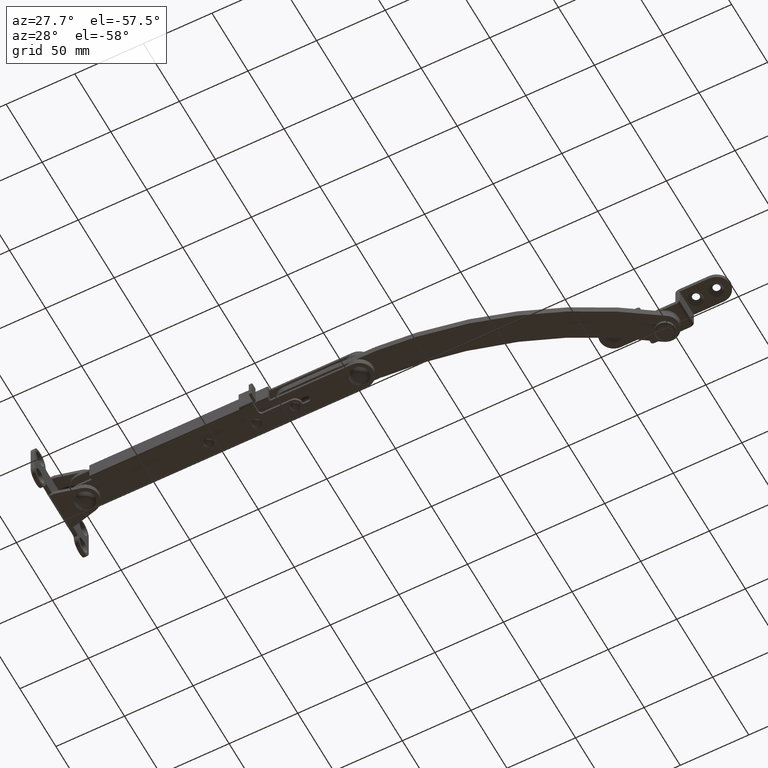
[diagram: clean part render]
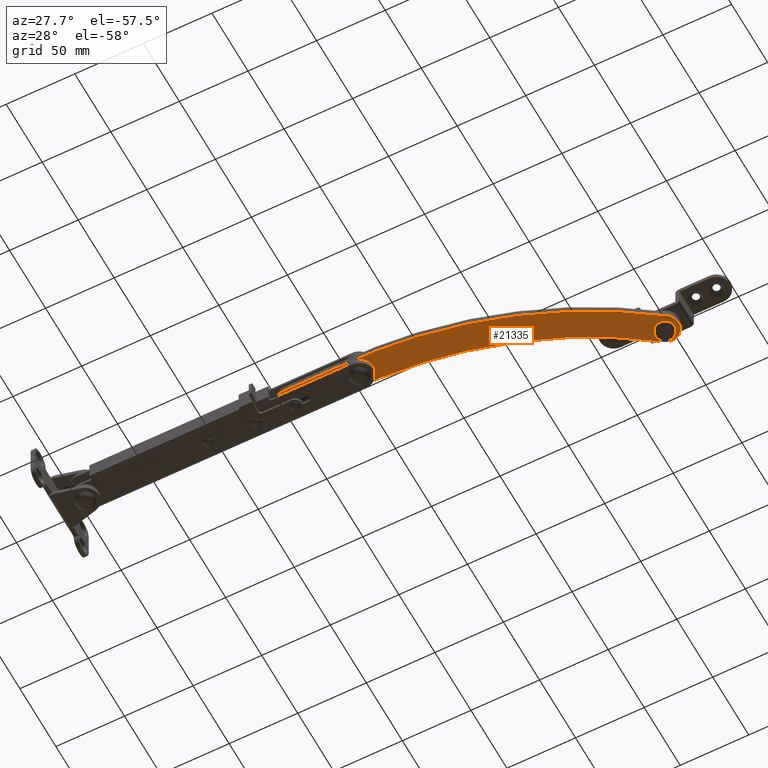
[diagram: same view with one face highlighted and labeled with its STEP entity id]
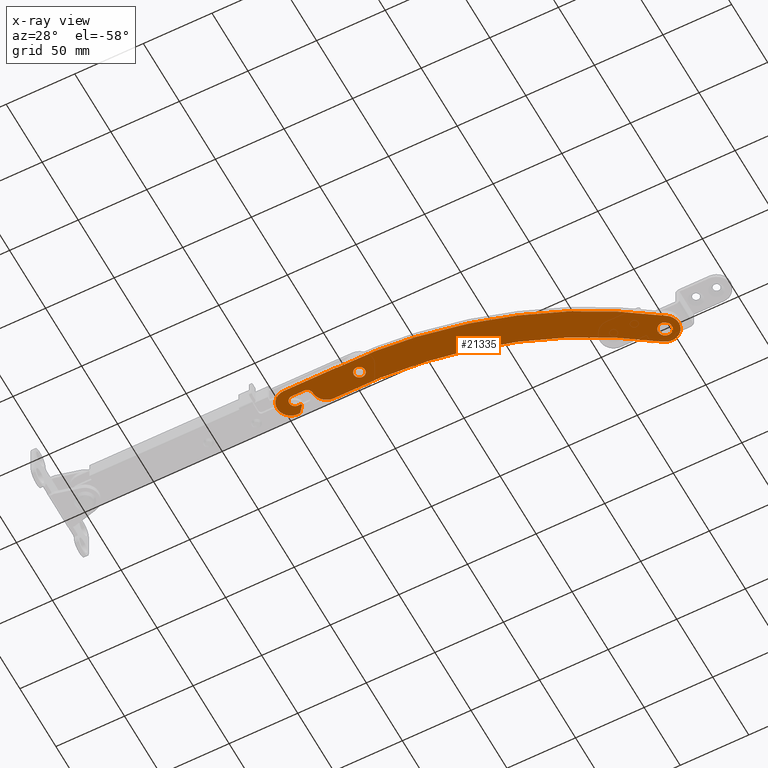
[diagram: x-ray of the same camera — body ghosted, the highlighted face saturated]
A machine part, auxiliary view. The second image highlights one B-rep face of the part: STEP entity #21335.
The next image is the same camera in x-ray: the body ghosted, the highlighted face saturated — about 0% of this face is hidden behind the body in this view.
In plain terms, the highlighted face is a freeform B-spline surface patch.
Its self-contained STEP definition (entity closure, byte-faithful):
#20151=CARTESIAN_POINT('',(199.682209662074710,4.037515201601258,-2.499999999999945));
#20152=VERTEX_POINT('',#20151);
#20158=CARTESIAN_POINT('',(204.049969000000000,0.0,-2.499999999999945));
#20159=VERTEX_POINT('',#20158);
#20160=CARTESIAN_POINT('',(199.682209662074650,4.037515201601258,-2.499999999999946));
#20161=CARTESIAN_POINT('',(199.840844066390360,4.050000000000000,-2.499999999999945));
#20162=CARTESIAN_POINT('',(199.999968999999990,4.050000000000000,-2.499999999999945));
#20163=CARTESIAN_POINT('',(204.049968999999980,4.050000000000001,-2.499999999999945));
#20164=CARTESIAN_POINT('',(204.049969000000000,0.0,-2.499999999999945));
#20172=(BOUNDED_CURVE()B_SPLINE_CURVE(2,(#20160,#20161,#20162,#20163,#20164),.UNSPECIFIED.,.F.,.U.)B_SPLINE_CURVE_WITH_KNOTS((3,2,3),(0.736331300613444,0.750000000000000,1.0),.UNSPECIFIED.)CURVE()GEOMETRIC_REPRESENTATION_ITEM()RATIONAL_B_SPLINE_CURVE((0.969723356131490,0.983986122558712,1.0,0.707106781186548,1.0))REPRESENTATION_ITEM(''));
#20173=EDGE_CURVE('',#20152,#20159,#20172,.T.);
#20175=CARTESIAN_POINT('',(200.317728337925300,-4.037515201601259,-2.499999999999944));
#20176=VERTEX_POINT('',#20175);
#20177=CARTESIAN_POINT('',(204.049969000000000,0.0,-2.499999999999945));
#20178=CARTESIAN_POINT('',(204.049968999999920,-3.743781490792441,-2.499999999999945));
#20179=CARTESIAN_POINT('',(200.317728337925270,-4.037515201601259,-2.499999999999944));
#20187=(BOUNDED_CURVE()B_SPLINE_CURVE(2,(#20177,#20178,#20179),.UNSPECIFIED.,.F.,.U.)B_SPLINE_CURVE_WITH_KNOTS((3,3),(0.0,0.236331300613444),.UNSPECIFIED.)CURVE()GEOMETRIC_REPRESENTATION_ITEM()RATIONAL_B_SPLINE_CURVE((1.0,0.723120658627835,0.969723356131491))REPRESENTATION_ITEM(''));
#20188=EDGE_CURVE('',#20159,#20176,#20187,.T.);
#20234=CARTESIAN_POINT('',(195.949969000000010,0.0,-2.499999999999945));
#20235=VERTEX_POINT('',#20234);
#20236=CARTESIAN_POINT('',(200.317728337925300,-4.037515201601259,-2.499999999999944));
#20237=CARTESIAN_POINT('',(200.159093933609630,-4.050000000000001,-2.499999999999945));
#20238=CARTESIAN_POINT('',(199.999968999999990,-4.050000000000000,-2.499999999999945));
#20239=CARTESIAN_POINT('',(195.949969000000010,-4.050000000000001,-2.499999999999945));
#20240=CARTESIAN_POINT('',(195.949969000000010,0.0,-2.499999999999945));
#20248=(BOUNDED_CURVE()B_SPLINE_CURVE(2,(#20236,#20237,#20238,#20239,#20240),.UNSPECIFIED.,.F.,.U.)B_SPLINE_CURVE_WITH_KNOTS((3,2,3),(0.236331300613444,0.250000000000000,0.500000000000000),.UNSPECIFIED.)CURVE()GEOMETRIC_REPRESENTATION_ITEM()RATIONAL_B_SPLINE_CURVE((0.969723356131490,0.983986122558713,1.0,0.707106781186548,1.0))REPRESENTATION_ITEM(''));
#20249=EDGE_CURVE('',#20176,#20235,#20248,.T.);
#20251=CARTESIAN_POINT('',(195.949969000000010,0.0,-2.499999999999945));
#20252=CARTESIAN_POINT('',(195.949969000000010,3.743781490792431,-2.499999999999946));
#20253=CARTESIAN_POINT('',(199.682209662074650,4.037515201601258,-2.499999999999946));
#20261=(BOUNDED_CURVE()B_SPLINE_CURVE(2,(#20251,#20252,#20253),.UNSPECIFIED.,.F.,.U.)B_SPLINE_CURVE_WITH_KNOTS((3,3),(0.500000000000000,0.736331300613444),.UNSPECIFIED.)CURVE()GEOMETRIC_REPRESENTATION_ITEM()RATIONAL_B_SPLINE_CURVE((1.0,0.723120658627835,0.969723356131490))REPRESENTATION_ITEM(''));
#20262=EDGE_CURVE('',#20235,#20152,#20261,.T.);
#20333=CARTESIAN_POINT('',(389.647376518544380,67.313764668444094,-2.499999999999945));
#20334=VERTEX_POINT('',#20333);
#20340=CARTESIAN_POINT('',(395.039672000000000,62.329178000000098,-2.499999999999945));
#20341=VERTEX_POINT('',#20340);
#20342=CARTESIAN_POINT('',(389.647376518544430,67.313764668444094,-2.499999999999945));
#20343=CARTESIAN_POINT('',(389.843221462132140,67.329178000000098,-2.499999999999946));
#20344=CARTESIAN_POINT('',(390.039672000000000,67.329178000000098,-2.499999999999945));
#20345=CARTESIAN_POINT('',(395.039672000000000,67.329178000000098,-2.499999999999945));
#20346=CARTESIAN_POINT('',(395.039672000000000,62.329178000000098,-2.499999999999945));
#20354=(BOUNDED_CURVE()B_SPLINE_CURVE(2,(#20342,#20343,#20344,#20345,#20346),.UNSPECIFIED.,.F.,.U.)B_SPLINE_CURVE_WITH_KNOTS((3,2,3),(0.736331300439053,0.750000000000000,1.0),.UNSPECIFIED.)CURVE()GEOMETRIC_REPRESENTATION_ITEM()RATIONAL_B_SPLINE_CURVE((0.969723355767549,0.983986122354401,1.0,0.707106781186548,1.0))REPRESENTATION_ITEM(''));
#20355=EDGE_CURVE('',#20334,#20341,#20354,.T.);
#20357=CARTESIAN_POINT('',(390.431967481455620,57.344591331556117,-2.499999999999945));
#20358=VERTEX_POINT('',#20357);
#20359=CARTESIAN_POINT('',(395.039672000000000,62.329178000000098,-2.499999999999945));
#20360=CARTESIAN_POINT('',(395.039672000000000,57.707225546948102,-2.499999999999945));
#20361=CARTESIAN_POINT('',(390.431967481455620,57.344591331556117,-2.499999999999945));
#20369=(BOUNDED_CURVE()B_SPLINE_CURVE(2,(#20359,#20360,#20361),.UNSPECIFIED.,.F.,.U.)B_SPLINE_CURVE_WITH_KNOTS((3,3),(0.0,0.236331300439054),.UNSPECIFIED.)CURVE()GEOMETRIC_REPRESENTATION_ITEM()RATIONAL_B_SPLINE_CURVE((1.0,0.723120658832146,0.969723355767551))REPRESENTATION_ITEM(''));
#20370=EDGE_CURVE('',#20341,#20358,#20369,.T.);
#20416=CARTESIAN_POINT('',(385.039672000000000,62.329178000000098,-2.499999999999945));
#20417=VERTEX_POINT('',#20416);
#20418=CARTESIAN_POINT('',(390.431967481455620,57.344591331556117,-2.499999999999945));
#20419=CARTESIAN_POINT('',(390.236122537867740,57.329178000000091,-2.499999999999945));
#20420=CARTESIAN_POINT('',(390.039672000000000,57.329178000000098,-2.499999999999945));
#20421=CARTESIAN_POINT('',(385.039672000000050,57.329178000000084,-2.499999999999945));
#20422=CARTESIAN_POINT('',(385.039672000000000,62.329178000000098,-2.499999999999945));
#20430=(BOUNDED_CURVE()B_SPLINE_CURVE(2,(#20418,#20419,#20420,#20421,#20422),.UNSPECIFIED.,.F.,.U.)B_SPLINE_CURVE_WITH_KNOTS((3,2,3),(0.236331300439054,0.250000000000000,0.500000000000000),.UNSPECIFIED.)CURVE()GEOMETRIC_REPRESENTATION_ITEM()RATIONAL_B_SPLINE_CURVE((0.969723355767551,0.983986122354402,1.0,0.707106781186548,1.0))REPRESENTATION_ITEM(''));
#20431=EDGE_CURVE('',#20358,#20417,#20430,.T.);
#20433=CARTESIAN_POINT('',(385.039672000000000,62.329178000000098,-2.499999999999945));
#20434=CARTESIAN_POINT('',(385.039672000000110,66.951130453052031,-2.499999999999946));
#20435=CARTESIAN_POINT('',(389.647376518544430,67.313764668444094,-2.499999999999945));
#20443=(BOUNDED_CURVE()B_SPLINE_CURVE(2,(#20433,#20434,#20435),.UNSPECIFIED.,.F.,.U.)B_SPLINE_CURVE_WITH_KNOTS((3,3),(0.500000000000000,0.736331300439052),.UNSPECIFIED.)CURVE()GEOMETRIC_REPRESENTATION_ITEM()RATIONAL_B_SPLINE_CURVE((1.0,0.723120658832148,0.969723355767548))REPRESENTATION_ITEM(''));
#20444=EDGE_CURVE('',#20417,#20334,#20443,.T.);
#20494=CARTESIAN_POINT('',(165.992293828772010,0.003207617239024,-2.499999999999945));
#20495=VERTEX_POINT('',#20494);
#20501=CARTESIAN_POINT('',(161.891604911397000,-4.096090723936130,-2.499999999999945));
#20502=VERTEX_POINT('',#20501);
#20503=CARTESIAN_POINT('',(165.992293828772290,0.003207617239025,-2.499999999999945));
#20504=CARTESIAN_POINT('',(165.991592229996630,-4.096779699219845,-2.499999999999944));
#20505=CARTESIAN_POINT('',(161.891604911397000,-4.096090723936151,-2.499999999999945));
#20513=(BOUNDED_CURVE()B_SPLINE_CURVE(2,(#20503,#20504,#20505),.UNSPECIFIED.,.F.,.U.)CURVE()GEOMETRIC_REPRESENTATION_ITEM()QUASI_UNIFORM_CURVE()RATIONAL_B_SPLINE_CURVE((1.0,0.707107869744780,1.0))REPRESENTATION_ITEM(''));
#20514=EDGE_CURVE('',#20495,#20502,#20513,.T.);
#20537=CARTESIAN_POINT('',(152.991604576599000,-4.094595138761060,-2.499999999999945));
#20538=VERTEX_POINT('',#20537);
#20539=CARTESIAN_POINT('',(152.991604576599000,-4.094595138761060,-2.499999999999945));
#20540=CARTESIAN_POINT('',(161.891604911397000,-4.096090723936130,-2.499999999999945));
#20541=QUASI_UNIFORM_CURVE('',1,(#20539,#20540),.UNSPECIFIED.,.F.,.U.);
#20542=EDGE_CURVE('',#20538,#20502,#20541,.T.);
#20590=CARTESIAN_POINT('',(152.992980060619490,4.105426376480540,-2.499999999999945));
#20591=VERTEX_POINT('',#20590);
#20592=CARTESIAN_POINT('',(152.991604576599000,-4.094595138761059,-2.499999999999945));
#20593=CARTESIAN_POINT('',(150.624451975830340,-4.094211428268318,-2.499999999999945));
#20594=CARTESIAN_POINT('',(149.441215692187000,-2.044000834297593,-2.499999999999945));
#20595=CARTESIAN_POINT('',(148.257979408543690,0.006209759673132,-2.499999999999945));
#20596=CARTESIAN_POINT('',(149.441903436438110,2.056023282590268,-2.499999999999945));
#20597=CARTESIAN_POINT('',(150.625827464332620,4.105836805507403,-2.499999999999945));
#20598=CARTESIAN_POINT('',(152.992980060619490,4.105426376480549,-2.499999999999945));
#20606=(BOUNDED_CURVE()B_SPLINE_CURVE(2,(#20592,#20593,#20594,#20595,#20596,#20597,#20598),.UNSPECIFIED.,.F.,.U.)B_SPLINE_CURVE_WITH_KNOTS((3,2,2,3),(0.0,0.333333333333333,0.666666666666667,1.0),.UNSPECIFIED.)CURVE()GEOMETRIC_REPRESENTATION_ITEM()RATIONAL_B_SPLINE_CURVE((1.0,0.866024463182579,1.0,0.866024463182579,1.0,0.866024463182579,1.0))REPRESENTATION_ITEM(''));
#20607=EDGE_CURVE('',#20538,#20591,#20606,.T.);
#20630=CARTESIAN_POINT('',(155.494548496868990,4.104992641747895,-2.499999999999945));
#20631=VERTEX_POINT('',#20630);
#20632=CARTESIAN_POINT('',(155.494548496868990,4.104992641747895,-2.499999999999945));
#20633=CARTESIAN_POINT('',(152.992980060619490,4.105426376480540,-2.499999999999945));
#20634=QUASI_UNIFORM_CURVE('',1,(#20632,#20633),.UNSPECIFIED.,.F.,.U.);
#20635=EDGE_CURVE('',#20631,#20591,#20634,.T.);
#20658=CARTESIAN_POINT('',(155.495111645176000,5.104995582170590,-2.499999999999945));
#20659=VERTEX_POINT('',#20658);
#20660=CARTESIAN_POINT('',(155.495111645176000,5.104995582170590,-2.499999999999945));
#20661=CARTESIAN_POINT('',(155.494548496868990,4.104992641747895,-2.499999999999945));
#20662=QUASI_UNIFORM_CURVE('',1,(#20660,#20661),.UNSPECIFIED.,.F.,.U.);
#20663=EDGE_CURVE('',#20659,#20631,#20662,.T.);
#20686=CARTESIAN_POINT('',(151.604273395805510,9.875120801763650,-2.499999999999945));
#20687=VERTEX_POINT('',#20686);
#20688=CARTESIAN_POINT('',(151.604273395805510,9.875120801763650,-2.499999999999945));
#20689=CARTESIAN_POINT('',(155.495111645176000,5.104995582170590,-2.499999999999945));
#20690=QUASI_UNIFORM_CURVE('',1,(#20688,#20689),.UNSPECIFIED.,.F.,.U.);
#20691=EDGE_CURVE('',#20687,#20659,#20690,.T.);
#20739=CARTESIAN_POINT('',(149.967174670438000,-9.994073230658492,-2.499999999999945));
#20740=VERTEX_POINT('',#20739);
#20741=CARTESIAN_POINT('',(149.967174670438000,-9.994073230658492,-2.499999999999945));
#20742=CARTESIAN_POINT('',(143.833896049889350,-9.978649185365187,-2.499999999999946));
#20743=CARTESIAN_POINT('',(141.067397372090600,-4.504726496452794,-2.499999999999945));
#20744=CARTESIAN_POINT('',(138.300898694291790,0.969196192459599,-2.499999999999946));
#20745=CARTESIAN_POINT('',(141.926040939578090,5.916487192582053,-2.499999999999945));
#20746=CARTESIAN_POINT('',(145.551183184864410,10.863778192704507,-2.499999999999946));
#20747=CARTESIAN_POINT('',(151.604273395805510,9.875120801763622,-2.499999999999945));
#20755=(BOUNDED_CURVE()B_SPLINE_CURVE(2,(#20741,#20742,#20743,#20744,#20745,#20746,#20747),.UNSPECIFIED.,.F.,.U.)B_SPLINE_CURVE_WITH_KNOTS((3,2,2,3),(0.0,0.333333333333333,0.666666666666667,1.0),.UNSPECIFIED.)CURVE()GEOMETRIC_REPRESENTATION_ITEM()RATIONAL_B_SPLINE_CURVE((1.0,0.852439200869313,1.0,0.852439200869313,1.0,0.852439200869313,1.0))REPRESENTATION_ITEM(''));
#20756=EDGE_CURVE('',#20740,#20687,#20755,.T.);
#20779=CARTESIAN_POINT('',(188.631841210929510,-10.000602722502681,-2.499999999999945));
#20780=VERTEX_POINT('',#20779);
#20781=CARTESIAN_POINT('',(188.631841210929510,-10.000602722502681,-2.499999999999945));
#20782=CARTESIAN_POINT('',(149.967174670438000,-9.994073230658492,-2.499999999999945));
#20783=QUASI_UNIFORM_CURVE('',1,(#20781,#20782),.UNSPECIFIED.,.F.,.U.);
#20784=EDGE_CURVE('',#20780,#20740,#20783,.T.);
#20830=CARTESIAN_POINT('',(188.635328099598010,-9.800662946603380,-2.499999999999945));
#20831=VERTEX_POINT('',#20830);
#20832=CARTESIAN_POINT('',(188.635328099598010,-9.800662946603383,-2.499999999999945));
#20833=CARTESIAN_POINT('',(188.733556743992860,-9.804073535669447,-2.499999999999945));
#20834=CARTESIAN_POINT('',(188.731842894739800,-9.902346428260298,-2.499999999999945));
#20835=CARTESIAN_POINT('',(188.730129045486620,-10.000619320851149,-2.499999999999945));
#20836=CARTESIAN_POINT('',(188.631841210929510,-10.000602722502689,-2.499999999999945));
#20844=(BOUNDED_CURVE()B_SPLINE_CURVE(2,(#20832,#20833,#20834,#20835,#20836),.UNSPECIFIED.,.F.,.U.)B_SPLINE_CURVE_WITH_KNOTS((3,2,3),(0.0,0.500000000000000,1.0),.UNSPECIFIED.)CURVE()GEOMETRIC_REPRESENTATION_ITEM()RATIONAL_B_SPLINE_CURVE((1.0,0.713185878240497,1.0,0.713185878240497,1.0))REPRESENTATION_ITEM(''));
#20845=EDGE_CURVE('',#20831,#20780,#20844,.T.);
#20885=CARTESIAN_POINT('',(395.932670892218030,54.131489166774003,-2.499999999999945));
#20886=VERTEX_POINT('',#20885);
#20887=CARTESIAN_POINT('',(395.932670892218080,54.131489166774067,-2.499999999999945));
#20888=CARTESIAN_POINT('',(303.371207799041030,-13.784398436252850,-2.499999999999945));
#20889=CARTESIAN_POINT('',(188.635328099598010,-9.800662946603367,-2.499999999999945));
#20897=(BOUNDED_CURVE()B_SPLINE_CURVE(2,(#20887,#20888,#20889),.UNSPECIFIED.,.F.,.U.)CURVE()GEOMETRIC_REPRESENTATION_ITEM()QUASI_UNIFORM_CURVE()RATIONAL_B_SPLINE_CURVE((1.0,0.944784642176282,1.0))REPRESENTATION_ITEM(''));
#20898=EDGE_CURVE('',#20886,#20831,#20897,.T.);
#20938=CARTESIAN_POINT('',(395.946060059229010,54.143288464509403,-2.499999999999945));
#20939=VERTEX_POINT('',#20938);
#20940=CARTESIAN_POINT('',(395.946060059229180,54.143288464509183,-2.499999999999945));
#20941=CARTESIAN_POINT('',(395.939894020984180,54.136789052763667,-2.499999999999945));
#20942=CARTESIAN_POINT('',(395.932670892218030,54.131489166774010,-2.499999999999945));
#20950=(BOUNDED_CURVE()B_SPLINE_CURVE(2,(#20940,#20941,#20942),.UNSPECIFIED.,.F.,.U.)CURVE()GEOMETRIC_REPRESENTATION_ITEM()QUASI_UNIFORM_CURVE()RATIONAL_B_SPLINE_CURVE((1.0,0.996010878199911,1.0))REPRESENTATION_ITEM(''));
#20951=EDGE_CURVE('',#20939,#20886,#20950,.T.);
#20991=CARTESIAN_POINT('',(395.959951515913020,54.155453915347202,-2.499999999999945));
#20992=VERTEX_POINT('',#20991);
#20993=CARTESIAN_POINT('',(395.946060059229010,54.143288464509432,-2.499999999999945));
#20994=CARTESIAN_POINT('',(395.952441778948750,54.150015218781007,-2.499999999999945));
#20995=CARTESIAN_POINT('',(395.959951515912910,54.155453915347280,-2.499999999999945));
#21003=(BOUNDED_CURVE()B_SPLINE_CURVE(2,(#20993,#20994,#20995),.UNSPECIFIED.,.F.,.U.)CURVE()GEOMETRIC_REPRESENTATION_ITEM()QUASI_UNIFORM_CURVE()RATIONAL_B_SPLINE_CURVE((1.0,0.995728743648471,1.0))REPRESENTATION_ITEM(''));
#21004=EDGE_CURVE('',#20939,#20992,#21003,.T.);
#21050=CARTESIAN_POINT('',(384.371410625373020,70.454998101325700,-2.499999999999945));
#21051=VERTEX_POINT('',#21050);
#21052=CARTESIAN_POINT('',(384.371410625373410,70.454998101325245,-2.499999999999945));
#21053=CARTESIAN_POINT('',(392.500457132577200,76.128186322258287,-2.499999999999945));
#21054=CARTESIAN_POINT('',(398.244504629345900,68.049053939305011,-2.499999999999945));
#21055=CARTESIAN_POINT('',(403.988552126114430,59.969921556351750,-2.499999999999945));
#21056=CARTESIAN_POINT('',(395.959951515913020,54.155453915347103,-2.499999999999945));
#21064=(BOUNDED_CURVE()B_SPLINE_CURVE(2,(#21052,#21053,#21054,#21055,#21056),.UNSPECIFIED.,.F.,.U.)B_SPLINE_CURVE_WITH_KNOTS((3,2,3),(0.0,0.500000000000000,1.0),.UNSPECIFIED.)CURVE()GEOMETRIC_REPRESENTATION_ITEM()RATIONAL_B_SPLINE_CURVE((1.0,0.710191339439909,1.0,0.710191339439909,1.0))REPRESENTATION_ITEM(''));
#21065=EDGE_CURVE('',#21051,#20992,#21064,.T.);
#21105=CARTESIAN_POINT('',(211.270921621366990,10.199935711989699,-2.499999999999945));
#21106=VERTEX_POINT('',#21105);
#21107=CARTESIAN_POINT('',(384.371410625373070,70.454998101325771,-2.499999999999945));
#21108=CARTESIAN_POINT('',(307.111512999859880,13.638197597696639,-2.499999999999945));
#21109=CARTESIAN_POINT('',(211.270921621366990,10.199935711989680,-2.499999999999945));
#21117=(BOUNDED_CURVE()B_SPLINE_CURVE(2,(#21107,#21108,#21109),.UNSPECIFIED.,.F.,.U.)CURVE()GEOMETRIC_REPRESENTATION_ITEM()QUASI_UNIFORM_CURVE()RATIONAL_B_SPLINE_CURVE((1.0,0.955597511157702,1.0))REPRESENTATION_ITEM(''));
#21118=EDGE_CURVE('',#21051,#21106,#21117,.T.);
#21164=CARTESIAN_POINT('',(211.274506794878990,10.0,-2.499999999999945));
#21165=VERTEX_POINT('',#21164);
#21166=CARTESIAN_POINT('',(211.274506794878990,10.000000000000011,-2.499999999999945));
#21167=CARTESIAN_POINT('',(211.176283882151210,10.000000000000005,-2.499999999999945));
#21168=CARTESIAN_POINT('',(211.174522868173310,10.098207125069930,-2.499999999999945));
#21169=CARTESIAN_POINT('',(211.172761854195410,10.196414250139854,-2.499999999999945));
#21170=CARTESIAN_POINT('',(211.270921621366990,10.199935711989699,-2.499999999999945));
#21178=(BOUNDED_CURVE()B_SPLINE_CURVE(2,(#21166,#21167,#21168,#21169,#21170),.UNSPECIFIED.,.F.,.U.)B_SPLINE_CURVE_WITH_KNOTS((3,2,3),(0.0,0.500000000000000,1.0),.UNSPECIFIED.)CURVE()GEOMETRIC_REPRESENTATION_ITEM()RATIONAL_B_SPLINE_CURVE((1.0,0.713417391609112,1.0,0.713417391609112,1.0))REPRESENTATION_ITEM(''));
#21179=EDGE_CURVE('',#21165,#21106,#21178,.T.);
#21202=CARTESIAN_POINT('',(175.819303307804490,10.0,-2.499999999999945));
#21203=VERTEX_POINT('',#21202);
#21204=CARTESIAN_POINT('',(175.819303307804490,10.0,-2.499999999999945));
#21205=CARTESIAN_POINT('',(211.274506794878990,10.0,-2.499999999999945));
#21206=QUASI_UNIFORM_CURVE('',1,(#21204,#21205),.UNSPECIFIED.,.F.,.U.);
#21207=EDGE_CURVE('',#21203,#21165,#21206,.T.);
#21245=CARTESIAN_POINT('',(165.992293828772010,0.003207617239020,-2.499999999999945));
#21246=CARTESIAN_POINT('',(165.993975411926870,9.830005846870508,-2.499999999999945));
#21247=CARTESIAN_POINT('',(175.819303307804490,10.0,-2.499999999999945));
#21255=(BOUNDED_CURVE()B_SPLINE_CURVE(2,(#21245,#21246,#21247),.UNSPECIFIED.,.F.,.U.)CURVE()GEOMETRIC_REPRESENTATION_ITEM()QUASI_UNIFORM_CURVE()RATIONAL_B_SPLINE_CURVE((1.0,0.713256662701052,1.0))REPRESENTATION_ITEM(''));
#21256=EDGE_CURVE('',#20495,#21203,#21255,.T.);
#21299=CARTESIAN_POINT('',(127.004306313644800,-14.109187674378020,-2.500000000000000));
#21300=CARTESIAN_POINT('',(413.086074087555800,-14.109187674378020,-2.500000000000000));
#21301=CARTESIAN_POINT('',(127.004306313644800,76.361940617767672,-2.500000000000000));
#21302=CARTESIAN_POINT('',(413.086074087555800,76.361940617767672,-2.500000000000000));
#21303=B_SPLINE_SURFACE_WITH_KNOTS('',1,1,((#21299,#21301),(#21300,#21302)),.UNSPECIFIED.,.F.,.F.,.U.,(2,2),(2,2),(0.0,286.081767773911000),(0.0,90.471128292145693),.UNSPECIFIED.);
#21304=ORIENTED_EDGE('',*,*,#21256,.T.);
#21305=ORIENTED_EDGE('',*,*,#21207,.T.);
#21306=ORIENTED_EDGE('',*,*,#21179,.T.);
#21307=ORIENTED_EDGE('',*,*,#21118,.F.);
#21308=ORIENTED_EDGE('',*,*,#21065,.T.);
#21309=ORIENTED_EDGE('',*,*,#21004,.F.);
#21310=ORIENTED_EDGE('',*,*,#20951,.T.);
#21311=ORIENTED_EDGE('',*,*,#20898,.T.);
#21312=ORIENTED_EDGE('',*,*,#20845,.T.);
#21313=ORIENTED_EDGE('',*,*,#20784,.T.);
#21314=ORIENTED_EDGE('',*,*,#20756,.T.);
#21315=ORIENTED_EDGE('',*,*,#20691,.T.);
#21316=ORIENTED_EDGE('',*,*,#20663,.T.);
#21317=ORIENTED_EDGE('',*,*,#20635,.T.);
#21318=ORIENTED_EDGE('',*,*,#20607,.F.);
#21319=ORIENTED_EDGE('',*,*,#20542,.T.);
#21320=ORIENTED_EDGE('',*,*,#20514,.F.);
#21321=EDGE_LOOP('',(#21304,#21305,#21306,#21307,#21308,#21309,#21310,#21311,#21312,#21313,#21314,#21315,#21316,#21317,#21318,#21319,#21320));
#21322=FACE_OUTER_BOUND('',#21321,.T.);
#21323=ORIENTED_EDGE('',*,*,#20444,.F.);
#21324=ORIENTED_EDGE('',*,*,#20431,.F.);
#21325=ORIENTED_EDGE('',*,*,#20370,.F.);
#21326=ORIENTED_EDGE('',*,*,#20355,.F.);
#21327=EDGE_LOOP('',(#21323,#21324,#21325,#21326));
#21328=FACE_BOUND('',#21327,.T.);
#21329=ORIENTED_EDGE('',*,*,#20262,.F.);
#21330=ORIENTED_EDGE('',*,*,#20249,.F.);
#21331=ORIENTED_EDGE('',*,*,#20188,.F.);
#21332=ORIENTED_EDGE('',*,*,#20173,.F.);
#21333=EDGE_LOOP('',(#21329,#21330,#21331,#21332));
#21334=FACE_BOUND('',#21333,.T.);
#21335=ADVANCED_FACE('',(#21322,#21328,#21334),#21303,.F.);